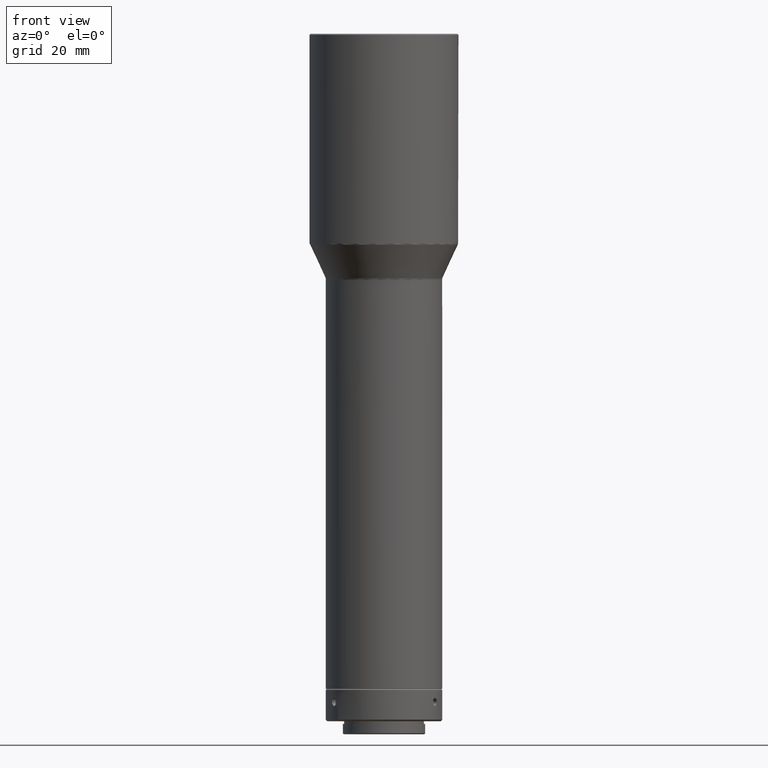
[diagram: clean part render]
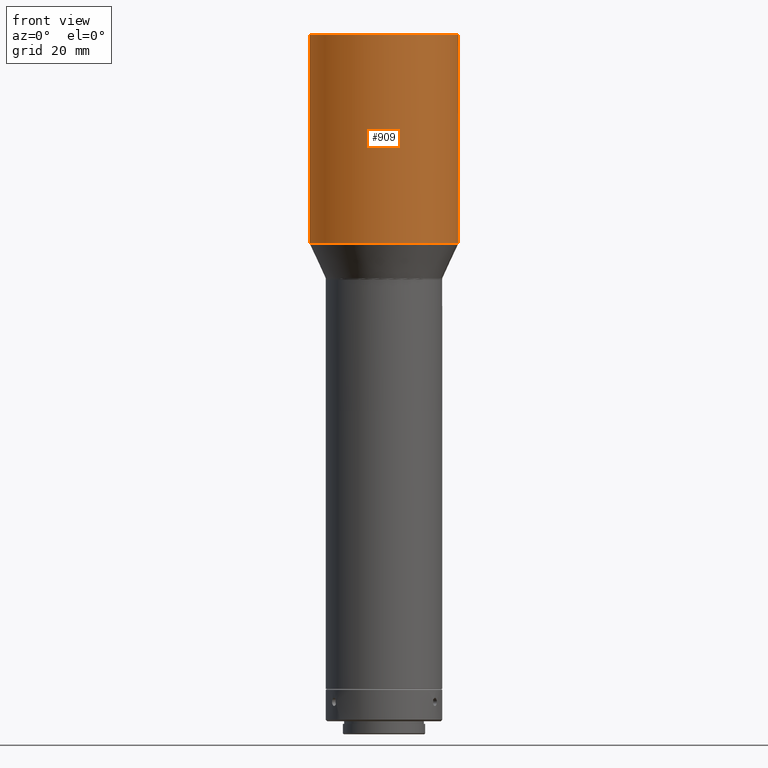
[diagram: same view with one face highlighted and labeled with its STEP entity id]
A machine part, front view. The second image highlights one B-rep face of the part: STEP entity #909.
In plain terms, the highlighted cylindrical surface (bore or boss wall) has radius 23 mm, axis along (0, -0, -1).
Its self-contained STEP definition (entity closure, byte-faithful):
#65 = CARTESIAN_POINT ( 'NONE',  ( 22.80078845229480322, 3.020603574403554870, -567.7783053373570965 ) ) ;
#99 = CARTESIAN_POINT ( 'NONE',  ( -2.275957200481630467E-15, 5.689893001204174775E-16, -503.3000000000000682 ) ) ;
#131 = EDGE_CURVE ( 'NONE', #269, #269, #774, .T. ) ;
#169 = AXIS2_PLACEMENT_3D ( 'NONE', #573, #856, #478 ) ;
#222 = FACE_OUTER_BOUND ( 'NONE', #739, .T. ) ;
#269 = VERTEX_POINT ( 'NONE', #65 ) ;
#279 = VERTEX_POINT ( 'NONE', #503 ) ;
#280 = ORIENTED_EDGE ( 'NONE', *, *, #302, .T. ) ;
#289 = FACE_OUTER_BOUND ( 'NONE', #321, .T. ) ;
#302 = EDGE_CURVE ( 'NONE', #279, #279, #744, .T. ) ;
#311 = AXIS2_PLACEMENT_3D ( 'NONE', #641, #416, #638 ) ;
#316 = DIRECTION ( 'NONE',  ( -1.000000000000000000, 0.000000000000000000, 0.000000000000000000 ) ) ;
#321 = EDGE_LOOP ( 'NONE', ( #280 ) ) ;
#333 = AXIS2_PLACEMENT_3D ( 'NONE', #99, #686, #316 ) ;
#416 = DIRECTION ( 'NONE',  ( 2.775557561562967156E-17, -6.938893903907538067E-18, -1.000000000000000000 ) ) ;
#478 = DIRECTION ( 'NONE',  ( 0.9913386283606439031, 0.1313305901914589569, 0.000000000000000000 ) ) ;
#503 = CARTESIAN_POINT ( 'NONE',  ( -22.99999999999999645, 5.689893001204174775E-16, -503.3000000000000682 ) ) ;
#534 = ORIENTED_EDGE ( 'NONE', *, *, #131, .F. ) ;
#573 = CARTESIAN_POINT ( 'NONE',  ( -4.863247211229596901E-16, 1.215811802807360522E-16, -567.7783053373570965 ) ) ;
#638 = DIRECTION ( 'NONE',  ( -1.000000000000000000, 0.000000000000000000, 0.000000000000000000 ) ) ;
#641 = CARTESIAN_POINT ( 'NONE',  ( 1.387778780781499910E-16, -3.469446951953812020E-17, -590.3000000000000682 ) ) ;
#686 = DIRECTION ( 'NONE',  ( 2.775557561562967156E-17, -6.938893903907538067E-18, -1.000000000000000000 ) ) ;
#739 = EDGE_LOOP ( 'NONE', ( #534 ) ) ;
#744 = CIRCLE ( 'NONE', #333, 22.99999999999999289 ) ;
#774 = CIRCLE ( 'NONE', #169, 22.99999999999999289 ) ;
#843 = CYLINDRICAL_SURFACE ( 'NONE', #311, 22.99999999999999289 ) ;
#856 = DIRECTION ( 'NONE',  ( 2.775557561562967156E-17, -6.938893903907538067E-18, -1.000000000000000000 ) ) ;
#909 = ADVANCED_FACE ( 'NONE', ( #289, #222 ), #843, .T. ) ;